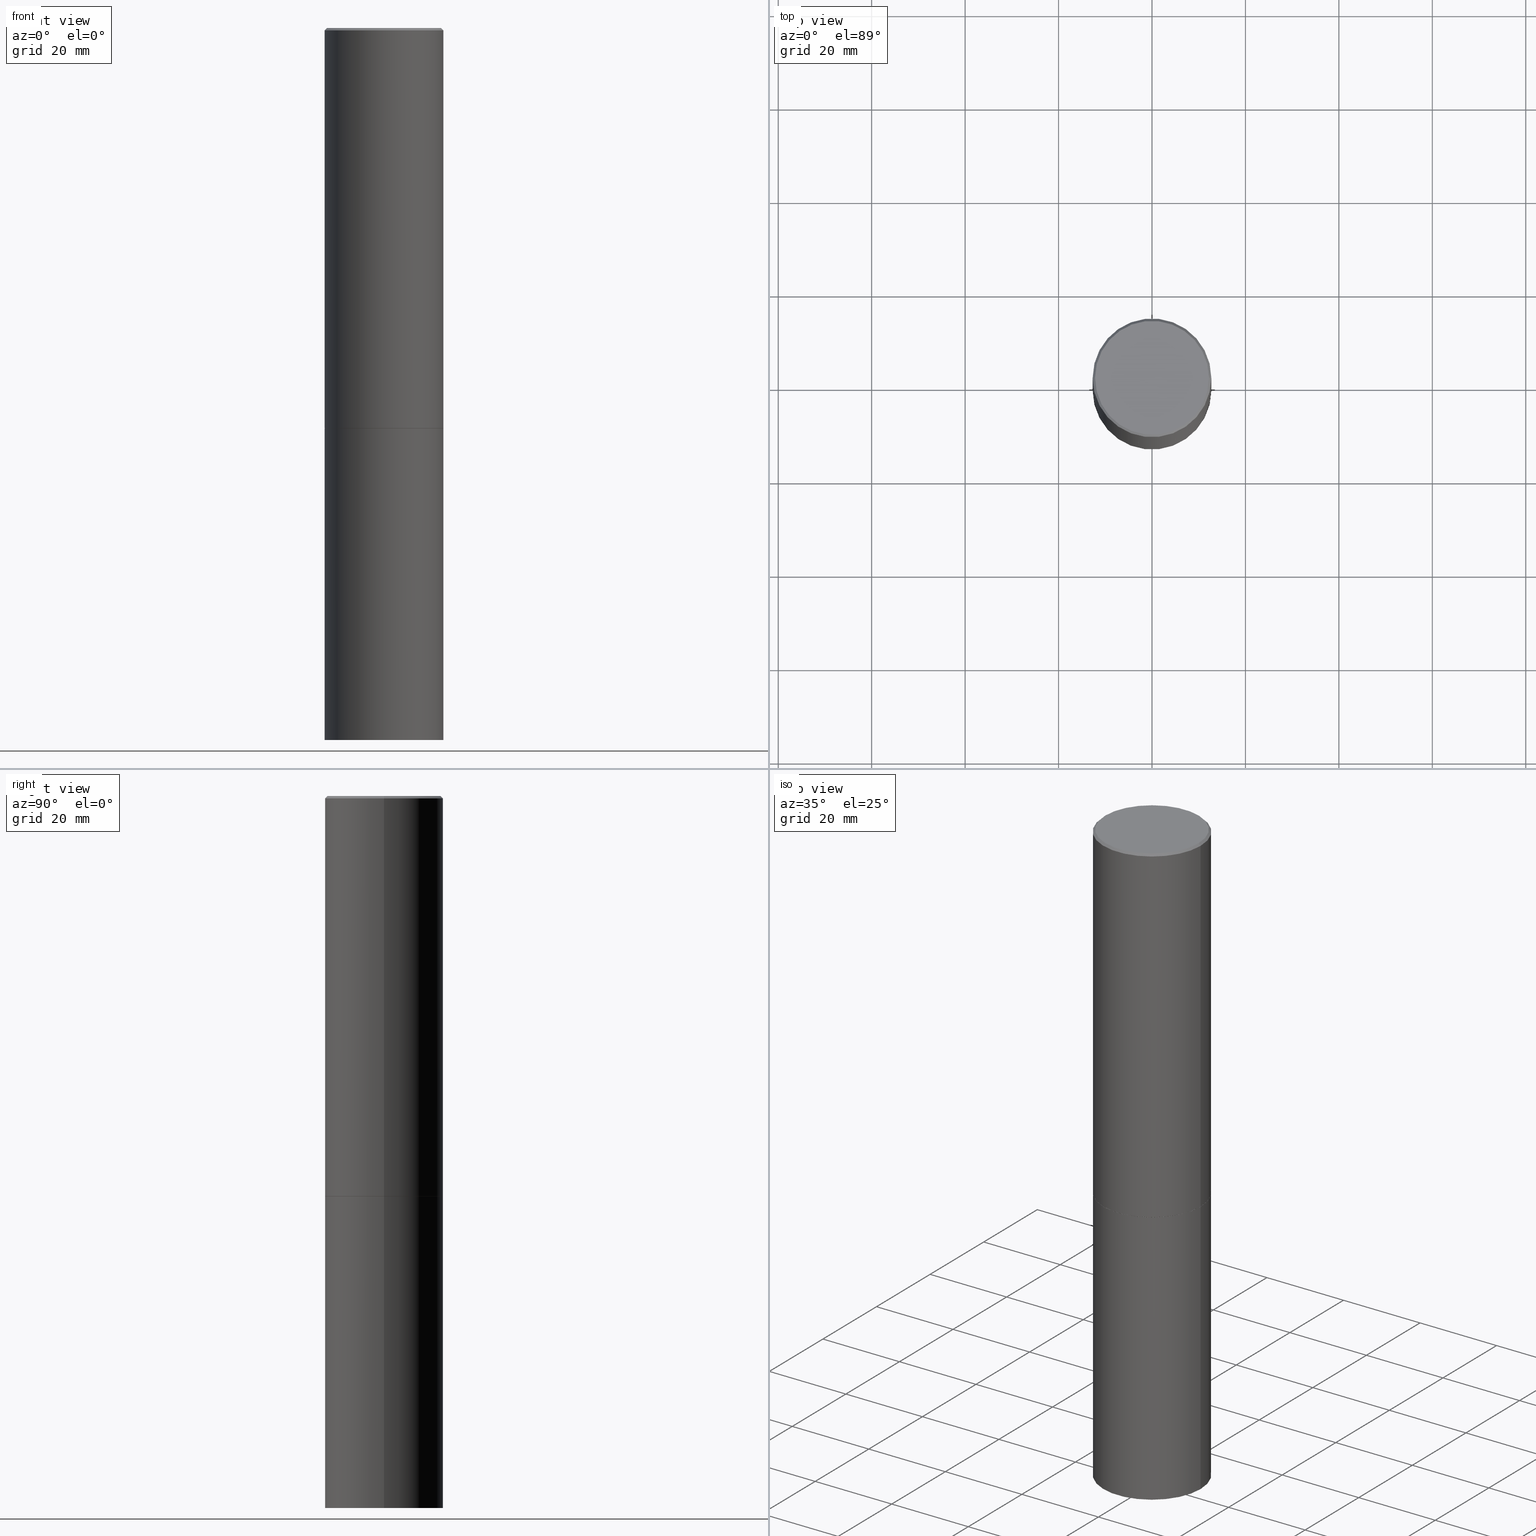
[diagram: canonical four-view strip — front | top / right | iso, engineering-drawing reading convention]
A machine part, canonical four-view strip (front | top / right | iso — engineering-drawing reading convention). The complete STEP part file that produces these views, byte-faithful:
ISO-10303-21;
HEADER;
FILE_DESCRIPTION (( 'STEP AP203' ),
    '1' );
FILE_NAME ('34753.STEP',
    '2024-02-27T17:38:16',
    ( '' ),
    ( '' ),
    'SwSTEP 2.0',
    'SolidWorks 2023',
    '' );
FILE_SCHEMA (( 'CONFIG_CONTROL_DESIGN' ));
ENDSEC;

DATA;
#1 = VECTOR ( 'NONE', #177, 39.37007874015748143 ) ;
#2 = DIRECTION ( 'NONE',  ( -2.438088387897960049E-29, 3.491481338843145188E-15, 1.000000000000000000 ) ) ;
#3 = PRODUCT_DEFINITION_FORMATION_WITH_SPECIFIED_SOURCE ( 'ANY', '', #124, .NOT_KNOWN. ) ;
#4 = CARTESIAN_POINT ( 'NONE',  ( 0.5000000000000000000, -1.527523085743875103E-14, -3.375000000000000444 ) ) ;
#5 = ORIENTED_EDGE ( 'NONE', *, *, #119, .F. ) ;
#6 = AXIS2_PLACEMENT_3D ( 'NONE', #142, #8, #337 ) ;
#7 = CARTESIAN_POINT ( 'NONE',  ( 8.251011752068652653E-29, -1.178025803725677624E-14, -3.374000000000000554 ) ) ;
#8 = DIRECTION ( 'NONE',  ( -2.445468806185136597E-29, 3.491481338843145583E-15, 1.000000000000000000 ) ) ;
#9 = LINE ( 'NONE', #112, #351 ) ;
#10 = CARTESIAN_POINT ( 'NONE',  ( 0.000000000000000000, 0.000000000000000000, 0.000000000000000000 ) ) ;
#11 = AXIS2_PLACEMENT_3D ( 'NONE', #23, #2, #106 ) ;
#12 = CARTESIAN_POINT ( 'NONE',  ( 0.000000000000000000, 0.000000000000000000, 0.000000000000000000 ) ) ;
#13 = ORIENTED_EDGE ( 'NONE', *, *, #268, .T. ) ;
#14 = CARTESIAN_POINT ( 'NONE',  ( 0.5000000000000000000, -3.491481338843133355E-15, 2.438088387897967896E-29 ) ) ;
#15 = CARTESIAN_POINT ( 'NONE',  ( 0.5000000000000000000, -2.444036937190200606E-14, -6.000000000000000888 ) ) ;
#16 = AXIS2_PLACEMENT_3D ( 'NONE', #201, #311, #47 ) ;
#17 = LOCAL_TIME ( 12, 38, 16.00000000000000000, #104 ) ;
#18 = CARTESIAN_POINT ( 'NONE',  ( 0.000000000000000000, 0.000000000000000000, 0.000000000000000000 ) ) ;
#19 = ADVANCED_FACE ( 'NONE', ( #59 ), #176, .T. ) ;
#20 = CIRCLE ( 'NONE', #305, 0.4799999999999995937 ) ;
#21 = PERSON_AND_ORGANIZATION ( #31, #274 ) ;
#22 = CALENDAR_DATE ( 2024, 27, 2 ) ;
#23 = CARTESIAN_POINT ( 'NONE',  ( 8.253457220874836014E-29, -1.178374951859561452E-14, -3.375000000000000000 ) ) ;
#24 = VECTOR ( 'NONE', #117, 39.37007874015748143 ) ;
#25 = ORIENTED_EDGE ( 'NONE', *, *, #307, .T. ) ;
#26 = ORIENTED_EDGE ( 'NONE', *, *, #242, .F. ) ;
#27 = ORIENTED_EDGE ( 'NONE', *, *, #139, .T. ) ;
#28 = DIRECTION ( 'NONE',  ( -2.445468806185136597E-29, 3.491481338843145583E-15, 1.000000000000000000 ) ) ;
#29 = AXIS2_PLACEMENT_3D ( 'NONE', #120, #89, #181 ) ;
#30 = AXIS2_PLACEMENT_3D ( 'NONE', #55, #345, #61 ) ;
#31 = PERSON ( 'UNSPECIFIED', 'UNSPECIFIED', 'UNSPECIFIED', ('UNSPECIFIED'), ('UNSPECIFIED'), ('UNSPECIFIED') ) ;
#32 = FACE_OUTER_BOUND ( 'NONE', #128, .T. ) ;
#33 = VERTEX_POINT ( 'NONE', #174 ) ;
#34 = DIRECTION ( 'NONE',  ( 0.7071067811868130271, -2.468850131085038979E-15, 0.7071067811862817853 ) ) ;
#35 = CARTESIAN_POINT ( 'NONE',  ( -0.4999999999999996114, 3.421651712066267296E-15, -0.02000000000000010797 ) ) ;
#36 = AXIS2_PLACEMENT_3D ( 'NONE', #353, #217, #98 ) ;
#37 = CARTESIAN_POINT ( 'NONE',  ( 3.491481338843279295E-15, 0.4999999999999790168, -6.000000000000002665 ) ) ;
#38 = APPROVAL_DATE_TIME ( #251, #303 ) ;
#39 = CIRCLE ( 'NONE', #335, 0.4999999999999996114 ) ;
#40 = ORIENTED_EDGE ( 'NONE', *, *, #300, .T. ) ;
#41 = CC_DESIGN_PERSON_AND_ORGANIZATION_ASSIGNMENT ( #161, #228, ( #124 ) ) ;
#42 = EDGE_LOOP ( 'NONE', ( #264, #40, #94, #309 ) ) ;
#43 = EDGE_CURVE ( 'NONE', #33, #179, #80, .T. ) ;
#44 = ORIENTED_EDGE ( 'NONE', *, *, #295, .T. ) ;
#45 = CLOSED_SHELL ( 'NONE', ( #62, #338, #237, #226 ) ) ;
#46 = AXIS2_PLACEMENT_3D ( 'NONE', #37, #241, #238 ) ;
#47 = DIRECTION ( 'NONE',  ( 1.000000000000000000, -6.982962677686266711E-15, 0.000000000000000000 ) ) ;
#48 = PERSON_AND_ORGANIZATION_ROLE ( 'classification_officer' ) ;
#49 = DIMENSIONAL_EXPONENTS ( 1.000000000000000000, 0.000000000000000000, 0.000000000000000000, 0.000000000000000000, 0.000000000000000000, 0.000000000000000000, 0.000000000000000000 ) ;
#50 = SECURITY_CLASSIFICATION_LEVEL ( 'unclassified' ) ;
#51 = ORIENTED_EDGE ( 'NONE', *, *, #43, .F. ) ;
#52 = CARTESIAN_POINT ( 'NONE',  ( 4.890937612370299433E-31, -6.982962677686328587E-17, -0.02000000000000010797 ) ) ;
#53 = AXIS2_PLACEMENT_3D ( 'NONE', #230, #281, #152 ) ;
#54 = ORIENTED_EDGE ( 'NONE', *, *, #153, .T. ) ;
#55 = CARTESIAN_POINT ( 'NONE',  ( 3.351822085289404787E-15, 0.4799999999999995937, -1.669508273909557867E-15 ) ) ;
#56 = MANIFOLD_SOLID_BREP ( 'Body-Move/Copy2[1]', #45 ) ;
#57 = CARTESIAN_POINT ( 'NONE',  ( -0.5000000000000000000, 3.552713678800500929E-15, -2.459467545127452891E-29 ) ) ;
#58 = VECTOR ( 'NONE', #34, 39.37007874015748854 ) ;
#59 = FACE_OUTER_BOUND ( 'NONE', #42, .T. ) ;
#60 = CARTESIAN_POINT ( 'NONE',  ( 0.4999999999999997780, -3.491481338843131778E-15, 2.438088387897966775E-29 ) ) ;
#61 = DIRECTION ( 'NONE',  ( -1.000000000000000000, 6.982962677686265922E-15, -4.876176775795935793E-29 ) ) ;
#62 = ADVANCED_FACE ( 'NONE', ( #186 ), #246, .T. ) ;
#63 = CARTESIAN_POINT ( 'NONE',  ( 8.251011752068652653E-29, -1.178025803725677624E-14, -3.374000000000000554 ) ) ;
#64 = APPROVAL_STATUS ( 'not_yet_approved' ) ;
#65 = VERTEX_POINT ( 'NONE', #15 ) ;
#66 = CARTESIAN_POINT ( 'NONE',  ( -0.4989999999999999991, -8.238141267152715385E-15, -3.375000000000000000 ) ) ;
#67 = CIRCLE ( 'NONE', #16, 0.4999999999999996114 ) ;
#68 = VECTOR ( 'NONE', #296, 39.37007874015748854 ) ;
#69 = CARTESIAN_POINT ( 'NONE',  ( 1.467281283711081958E-28, -2.094888803305887271E-14, -6.000000000000000888 ) ) ;
#70 = MANIFOLD_SOLID_BREP ( 'Body-Move/Copy2[2]', #160 ) ;
#71 = CALENDAR_DATE ( 2024, 27, 2 ) ;
#72 = DIRECTION ( 'NONE',  ( 1.000000000000000000, -6.982962677686265133E-15, 0.000000000000000000 ) ) ;
#73 = CONICAL_SURFACE ( 'NONE', #330, 0.4999999999999996114, 0.7853981633974450594 ) ;
#74 = EDGE_LOOP ( 'NONE', ( #232, #157 ) ) ;
#75 = APPROVAL_PERSON_ORGANIZATION ( #183, #209, #122 ) ;
#76 = VERTEX_POINT ( 'NONE', #121 ) ;
#77 = EDGE_CURVE ( 'NONE', #108, #65, #155, .T. ) ;
#78 = ORIENTED_EDGE ( 'NONE', *, *, #125, .T. ) ;
#79 = ORIENTED_EDGE ( 'NONE', *, *, #290, .T. ) ;
#80 = CIRCLE ( 'NONE', #187, 0.5000000000000000000 ) ;
#81 = EDGE_CURVE ( 'NONE', #65, #108, #205, .T. ) ;
#82 = CARTESIAN_POINT ( 'NONE',  ( -0.4999999999999996114, 3.421651712066267296E-15, -0.02000000000000010797 ) ) ;
#83 = CARTESIAN_POINT ( 'NONE',  ( 8.253457220874837135E-29, -1.178374951859561767E-14, -3.375000000000000444 ) ) ;
#84 = PLANE ( 'NONE',  #30 ) ;
#85 = CARTESIAN_POINT ( 'NONE',  ( -3.131554243005659264E-46, 4.471029511141341874E-32, 1.280553747030123384E-17 ) ) ;
#86 = CARTESIAN_POINT ( 'NONE',  ( -0.5000000000000000000, -2.372330153216316080E-15, -3.374000000000000554 ) ) ;
#87 = PERSON_AND_ORGANIZATION_ROLE ( 'creator' ) ;
#88 = EDGE_LOOP ( 'NONE', ( #171, #227, #44, #321 ) ) ;
#89 = DIRECTION ( 'NONE',  ( -2.445468806185136597E-29, 3.491481338843145583E-15, 1.000000000000000000 ) ) ;
#90 = ORIENTED_EDGE ( 'NONE', *, *, #134, .T. ) ;
#91 = LINE ( 'NONE', #288, #58 ) ;
#92 = CALENDAR_DATE ( 2024, 27, 2 ) ;
#93 = DIRECTION ( 'NONE',  ( -2.445468806185136597E-29, 3.491481338843145583E-15, 1.000000000000000000 ) ) ;
#94 = ORIENTED_EDGE ( 'NONE', *, *, #110, .T. ) ;
#95 = DESIGN_CONTEXT ( 'detailed design', #366, 'design' ) ;
#96 = FACE_OUTER_BOUND ( 'NONE', #88, .T. ) ;
#97 = CARTESIAN_POINT ( 'NONE',  ( -0.5000000000000000000, -1.281360509702674426E-14, -6.000000000000000888 ) ) ;
#98 = DIRECTION ( 'NONE',  ( -1.000000000000000000, 6.982962677686266711E-15, 0.000000000000000000 ) ) ;
#99 = CARTESIAN_POINT ( 'NONE',  ( 8.253457220874837135E-29, -1.178374951859561767E-14, -3.375000000000000444 ) ) ;
#100 = CALENDAR_DATE ( 2024, 27, 2 ) ;
#101 = ORIENTED_EDGE ( 'NONE', *, *, #169, .F. ) ;
#102 = CIRCLE ( 'NONE', #294, 0.5000000000000000000 ) ;
#103 = CARTESIAN_POINT ( 'NONE',  ( 0.000000000000000000, 0.000000000000000000, 0.000000000000000000 ) ) ;
#104 = COORDINATED_UNIVERSAL_TIME_OFFSET ( 5, 0, .BEHIND. ) ;
#105 = ORIENTED_EDGE ( 'NONE', *, *, #185, .F. ) ;
#106 = DIRECTION ( 'NONE',  ( 1.000000000000000000, -6.982962677686265922E-15, 4.876176775795935793E-29 ) ) ;
#107 = PERSON_AND_ORGANIZATION ( #31, #274 ) ;
#108 = VERTEX_POINT ( 'NONE', #97 ) ;
#109 = PRODUCT_RELATED_PRODUCT_CATEGORY ( 'detail', '', ( #124 ) ) ;
#110 = EDGE_CURVE ( 'NONE', #151, #76, #219, .T. ) ;
#111 = CC_DESIGN_APPROVAL ( #199, ( #188 ) ) ;
#112 = CARTESIAN_POINT ( 'NONE',  ( -0.4999999999999997780, 3.552713678800499352E-15, -2.459467545127452050E-29 ) ) ;
#113 = AXIS2_PLACEMENT_3D ( 'NONE', #159, #93, #72 ) ;
#114 = FACE_OUTER_BOUND ( 'NONE', #214, .T. ) ;
#115 = CC_DESIGN_SECURITY_CLASSIFICATION ( #188, ( #3 ) ) ;
#116 = ORIENTED_EDGE ( 'NONE', *, *, #191, .T. ) ;
#117 = DIRECTION ( 'NONE',  ( -2.445468806185136877E-29, 3.491481338843145188E-15, 1.000000000000000000 ) ) ;
#118 = DIRECTION ( 'NONE',  ( -2.445468806185136597E-29, 3.491481338843145583E-15, 1.000000000000000000 ) ) ;
#119 = EDGE_CURVE ( 'NONE', #173, #151, #91, .T. ) ;
#120 = CARTESIAN_POINT ( 'NONE',  ( 8.253457220874836014E-29, -1.178374951859561452E-14, -3.375000000000000000 ) ) ;
#121 = CARTESIAN_POINT ( 'NONE',  ( 0.4999999999999996114, -3.500078625662626318E-15, -0.02000000000000010797 ) ) ;
#122 = APPROVAL_ROLE ( '' ) ;
#123 = DIRECTION ( 'NONE',  ( 1.000000000000000000, 0.000000000000000000, 0.000000000000000000 ) ) ;
#124 = PRODUCT ( '34753', '34753', '', ( #260 ) ) ;
#125 = EDGE_CURVE ( 'NONE', #364, #329, #9, .T. ) ;
#126 = APPROVAL_ROLE ( '' ) ;
#127 = AXIS2_PLACEMENT_3D ( 'NONE', #257, #349, #210 ) ;
#128 = EDGE_LOOP ( 'NONE', ( #27, #78, #101, #184 ) ) ;
#129 =( CONVERSION_BASED_UNIT ( 'INCH', #280 ) LENGTH_UNIT ( ) NAMED_UNIT ( #49 ) );
#130 = FACE_OUTER_BOUND ( 'NONE', #195, .T. ) ;
#131 = DATE_AND_TIME ( #22, #17 ) ;
#132 = PERSON_AND_ORGANIZATION_ROLE ( 'design_supplier' ) ;
#133 = ORIENTED_EDGE ( 'NONE', *, *, #77, .T. ) ;
#134 = EDGE_CURVE ( 'NONE', #165, #221, #20, .T. ) ;
#135 = PERSON_AND_ORGANIZATION_ROLE ( 'creator' ) ;
#136 = CC_DESIGN_DATE_AND_TIME_ASSIGNMENT ( #131, #200, ( #188 ) ) ;
#137 = APPROVAL_PERSON_ORGANIZATION ( #363, #199, #126 ) ;
#138 = ORIENTED_EDGE ( 'NONE', *, *, #355, .F. ) ;
#139 = EDGE_CURVE ( 'NONE', #151, #364, #102, .T. ) ;
#140 = ORIENTED_EDGE ( 'NONE', *, *, #242, .T. ) ;
#141 = DIRECTION ( 'NONE',  ( 1.000000000000000000, -6.982962677686265133E-15, 0.000000000000000000 ) ) ;
#142 = CARTESIAN_POINT ( 'NONE',  ( 0.000000000000000000, 0.000000000000000000, 0.000000000000000000 ) ) ;
#143 = CARTESIAN_POINT ( 'NONE',  ( 1.467281283711081958E-28, -2.094888803305887271E-14, -6.000000000000000888 ) ) ;
#144 = LINE ( 'NONE', #35, #269 ) ;
#145 = CYLINDRICAL_SURFACE ( 'NONE', #287, 0.5000000000000000000 ) ;
#146 = CC_DESIGN_PERSON_AND_ORGANIZATION_ASSIGNMENT ( #308, #48, ( #188 ) ) ;
#147 = CARTESIAN_POINT ( 'NONE',  ( 0.5000000000000000000, -1.527173937609990960E-14, -3.374000000000000554 ) ) ;
#148 = CIRCLE ( 'NONE', #216, 0.5000000000000000000 ) ;
#149 = LOCAL_TIME ( 12, 38, 16.00000000000000000, #319 ) ;
#150 = FACE_OUTER_BOUND ( 'NONE', #361, .T. ) ;
#151 = VERTEX_POINT ( 'NONE', #147 ) ;
#152 = DIRECTION ( 'NONE',  ( 1.000000000000000000, -6.982962677686266711E-15, 4.876036955247133327E-29 ) ) ;
#153 = EDGE_CURVE ( 'NONE', #65, #179, #270, .T. ) ;
#154 = DATE_TIME_ROLE ( 'creation_date' ) ;
#155 = CIRCLE ( 'NONE', #215, 0.5000000000000000000 ) ;
#156 = COORDINATED_UNIVERSAL_TIME_OFFSET ( 5, 0, .BEHIND. ) ;
#157 = ORIENTED_EDGE ( 'NONE', *, *, #43, .T. ) ;
#158 = DIRECTION ( 'NONE',  ( 1.000000000000000000, -6.982962677686266711E-15, 0.000000000000000000 ) ) ;
#159 = CARTESIAN_POINT ( 'NONE',  ( 8.253457220874836014E-29, -1.178374951859561452E-14, -3.375000000000000000 ) ) ;
#160 = CLOSED_SHELL ( 'NONE', ( #256, #297, #252, #250, #19, #365, #277, #342 ) ) ;
#161 = PERSON_AND_ORGANIZATION ( #31, #274 ) ;
#162 = LINE ( 'NONE', #172, #168 ) ;
#163 = APPROVAL_DATE_TIME ( #328, #209 ) ;
#164 = CC_DESIGN_PERSON_AND_ORGANIZATION_ASSIGNMENT ( #273, #87, ( #272 ) ) ;
#165 = VERTEX_POINT ( 'NONE', #244 ) ;
#166 = ORIENTED_EDGE ( 'NONE', *, *, #300, .F. ) ;
#167 = DIRECTION ( 'NONE',  ( -2.445468806185136597E-29, 3.491481338843145583E-15, 1.000000000000000000 ) ) ;
#168 = VECTOR ( 'NONE', #284, 39.37007874015748143 ) ;
#169 = EDGE_CURVE ( 'NONE', #76, #329, #39, .T. ) ;
#170 = CC_DESIGN_APPROVAL ( #209, ( #3 ) ) ;
#171 = ORIENTED_EDGE ( 'NONE', *, *, #268, .F. ) ;
#172 = CARTESIAN_POINT ( 'NONE',  ( 0.4999999999999996114, -3.500078625662626318E-15, -0.02000000000000010797 ) ) ;
#173 = VERTEX_POINT ( 'NONE', #276 ) ;
#174 = CARTESIAN_POINT ( 'NONE',  ( -0.5000000000000000000, -1.281360509702674426E-14, -3.375000000000000444 ) ) ;
#175 = DIRECTION ( 'NONE',  ( -2.445468806185136877E-29, 3.491481338843145188E-15, 1.000000000000000000 ) ) ;
#176 = CYLINDRICAL_SURFACE ( 'NONE', #6, 0.4999999999999997780 ) ;
#177 = DIRECTION ( 'NONE',  ( -2.445468806185136877E-29, 3.491481338843145188E-15, 1.000000000000000000 ) ) ;
#178 = LINE ( 'NONE', #57, #331 ) ;
#179 = VERTEX_POINT ( 'NONE', #4 ) ;
#180 = CC_DESIGN_DATE_AND_TIME_ASSIGNMENT ( #213, #154, ( #272 ) ) ;
#181 = DIRECTION ( 'NONE',  ( 1.000000000000000000, -6.982962677686265133E-15, 0.000000000000000000 ) ) ;
#182 = DIRECTION ( 'NONE',  ( -2.445468806185136597E-29, 3.491481338843145583E-15, 1.000000000000000000 ) ) ;
#183 = PERSON_AND_ORGANIZATION ( #31, #274 ) ;
#184 = ORIENTED_EDGE ( 'NONE', *, *, #110, .F. ) ;
#185 = EDGE_CURVE ( 'NONE', #179, #33, #198, .T. ) ;
#186 = FACE_OUTER_BOUND ( 'NONE', #203, .T. ) ;
#187 = AXIS2_PLACEMENT_3D ( 'NONE', #83, #347, #299 ) ;
#188 = SECURITY_CLASSIFICATION ( '', '', #50 ) ;
#189 = DIRECTION ( 'NONE',  ( -2.445468806185136597E-29, 3.491481338843145583E-15, 1.000000000000000000 ) ) ;
#190 = CARTESIAN_POINT ( 'NONE',  ( 4.890937612370299433E-31, -6.982962677686328587E-17, -0.02000000000000010797 ) ) ;
#191 = EDGE_CURVE ( 'NONE', #253, #173, #263, .T. ) ;
#192 = CONICAL_SURFACE ( 'NONE', #36, 0.4999999999999996114, 0.7853981633974450594 ) ;
#193 = ORIENTED_EDGE ( 'NONE', *, *, #355, .T. ) ;
#194 = APPLICATION_PROTOCOL_DEFINITION ( 'international standard', 'config_control_design', 1994, #267 ) ;
#195 = EDGE_LOOP ( 'NONE', ( #140, #25, #357, #5 ) ) ;
#196 =( LENGTH_UNIT ( ) NAMED_UNIT ( * ) SI_UNIT ( $, .METRE. ) );
#197 = DIRECTION ( 'NONE',  ( -1.000000000000000000, 6.982962677686266711E-15, 0.000000000000000000 ) ) ;
#198 = CIRCLE ( 'NONE', #340, 0.5000000000000000000 ) ;
#199 = APPROVAL ( #225, 'UNSPECIFIED' ) ;
#200 = DATE_TIME_ROLE ( 'classification_date' ) ;
#201 = CARTESIAN_POINT ( 'NONE',  ( 4.890937612370299433E-31, -6.982962677686328587E-17, -0.02000000000000010797 ) ) ;
#202 = EDGE_LOOP ( 'NONE', ( #90, #79 ) ) ;
#203 = EDGE_LOOP ( 'NONE', ( #282, #193, #105, #313 ) ) ;
#204 = LINE ( 'NONE', #66, #68 ) ;
#205 = CIRCLE ( 'NONE', #324, 0.5000000000000000000 ) ;
#206 = DIRECTION ( 'NONE',  ( -2.445468806185136597E-29, 3.491481338843145583E-15, 1.000000000000000000 ) ) ;
#207 = AXIS2_PLACEMENT_3D ( 'NONE', #318, #28, #141 ) ;
#208 = DIRECTION ( 'NONE',  ( -2.445468806185136597E-29, 3.491481338843145583E-15, 1.000000000000000000 ) ) ;
#209 = APPROVAL ( #275, 'UNSPECIFIED' ) ;
#210 = DIRECTION ( 'NONE',  ( 1.000000000000000000, -6.982962677686265133E-15, 0.000000000000000000 ) ) ;
#211 = DIRECTION ( 'NONE',  ( -2.445468806185136597E-29, 3.491481338843145583E-15, 1.000000000000000000 ) ) ;
#212 = FACE_OUTER_BOUND ( 'NONE', #229, .T. ) ;
#213 = DATE_AND_TIME ( #71, #302 ) ;
#214 = EDGE_LOOP ( 'NONE', ( #233, #334 ) ) ;
#215 = AXIS2_PLACEMENT_3D ( 'NONE', #69, #189, #248 ) ;
#216 = AXIS2_PLACEMENT_3D ( 'NONE', #7, #208, #348 ) ;
#217 = DIRECTION ( 'NONE',  ( 2.445468806185136597E-29, -3.491481338843145583E-15, -1.000000000000000000 ) ) ;
#218 = CC_DESIGN_PERSON_AND_ORGANIZATION_ASSIGNMENT ( #224, #135, ( #3 ) ) ;
#219 = LINE ( 'NONE', #60, #1 ) ;
#220 = DIRECTION ( 'NONE',  ( 0.000000000000000000, 0.000000000000000000, 1.000000000000000000 ) ) ;
#221 = VERTEX_POINT ( 'NONE', #289 ) ;
#222 = DIRECTION ( 'NONE',  ( -2.445468806185136597E-29, 3.491481338843145583E-15, 1.000000000000000000 ) ) ;
#223 = CIRCLE ( 'NONE', #53, 0.4799999999999995937 ) ;
#224 = PERSON_AND_ORGANIZATION ( #31, #274 ) ;
#225 = APPROVAL_STATUS ( 'not_yet_approved' ) ;
#226 = ADVANCED_FACE ( 'NONE', ( #150 ), #145, .T. ) ;
#227 = ORIENTED_EDGE ( 'NONE', *, *, #134, .F. ) ;
#228 = PERSON_AND_ORGANIZATION_ROLE ( 'design_owner' ) ;
#229 = EDGE_LOOP ( 'NONE', ( #254, #116, #286, #166 ) ) ;
#230 = CARTESIAN_POINT ( 'NONE',  ( -3.131554243005659264E-46, 4.471029511141341874E-32, 1.280553747030123384E-17 ) ) ;
#231 = DATE_AND_TIME ( #356, #306 ) ;
#232 = ORIENTED_EDGE ( 'NONE', *, *, #185, .T. ) ;
#233 = ORIENTED_EDGE ( 'NONE', *, *, #81, .F. ) ;
#234 = CONICAL_SURFACE ( 'NONE', #127, 0.4989999999999999991, 0.7853981633978239785 ) ;
#235 = CC_DESIGN_APPROVAL ( #303, ( #272 ) ) ;
#236 = DIRECTION ( 'NONE',  ( 1.000000000000000000, -6.982962677686266711E-15, 4.876176775795935793E-29 ) ) ;
#237 = ADVANCED_FACE ( 'NONE', ( #247 ), #350, .F. ) ;
#238 = DIRECTION ( 'NONE',  ( -1.000000000000000000, 6.982962677686265922E-15, -4.876176775795935793E-29 ) ) ;
#239 = DIRECTION ( 'NONE',  ( -2.445468806185136877E-29, 3.491481338843145188E-15, 1.000000000000000000 ) ) ;
#240 = LOCAL_TIME ( 12, 38, 16.00000000000000000, #156 ) ;
#241 = DIRECTION ( 'NONE',  ( 2.438088387897960049E-29, -3.491481338843145188E-15, -1.000000000000000000 ) ) ;
#242 = EDGE_CURVE ( 'NONE', #173, #253, #249, .T. ) ;
#243 = ORIENTED_EDGE ( 'NONE', *, *, #295, .F. ) ;
#244 = CARTESIAN_POINT ( 'NONE',  ( -0.4799999999999995937, 3.386736898677836436E-15, 1.280553747027767124E-17 ) ) ;
#245 = DIRECTION ( 'NONE',  ( -1.000000000000000000, 6.982962677686265922E-15, -4.876176775795935793E-29 ) ) ;
#246 = CYLINDRICAL_SURFACE ( 'NONE', #315, 0.5000000000000000000 ) ;
#247 = FACE_OUTER_BOUND ( 'NONE', #74, .T. ) ;
#248 = DIRECTION ( 'NONE',  ( 1.000000000000000000, -6.982962677686262766E-15, 0.000000000000000000 ) ) ;
#249 = CIRCLE ( 'NONE', #113, 0.4989999999999999991 ) ;
#250 = ADVANCED_FACE ( 'NONE', ( #96 ), #192, .T. ) ;
#251 = DATE_AND_TIME ( #92, #240 ) ;
#252 = ADVANCED_FACE ( 'NONE', ( #325 ), #73, .T. ) ;
#253 = VERTEX_POINT ( 'NONE', #298 ) ;
#254 = ORIENTED_EDGE ( 'NONE', *, *, #307, .F. ) ;
#255 = ADVANCED_BREP_SHAPE_REPRESENTATION ( '34753', ( #56, #70, #279 ), #341 ) ;
#256 = ADVANCED_FACE ( 'NONE', ( #130 ), #234, .T. ) ;
#257 = CARTESIAN_POINT ( 'NONE',  ( 8.253457220874836014E-29, -1.178374951859561452E-14, -3.375000000000000000 ) ) ;
#258 = COORDINATED_UNIVERSAL_TIME_OFFSET ( 5, 0, .BEHIND. ) ;
#259 = APPROVAL_DATE_TIME ( #231, #199 ) ;
#260 = MECHANICAL_CONTEXT ( 'NONE', #267, 'mechanical' ) ;
#261 = EDGE_CURVE ( 'NONE', #329, #76, #67, .T. ) ;
#262 = FACE_OUTER_BOUND ( 'NONE', #312, .T. ) ;
#263 = CIRCLE ( 'NONE', #29, 0.4989999999999999991 ) ;
#264 = ORIENTED_EDGE ( 'NONE', *, *, #125, .F. ) ;
#265 = CONICAL_SURFACE ( 'NONE', #207, 0.4989999999999999991, 0.7853981633978239785 ) ;
#266 = PLANE ( 'NONE',  #46 ) ;
#267 = APPLICATION_CONTEXT ( 'configuration controlled 3d designs of mechanical parts and assemblies' ) ;
#268 = EDGE_CURVE ( 'NONE', #221, #76, #162, .T. ) ;
#269 = VECTOR ( 'NONE', #323, 39.37007874015748143 ) ;
#270 = LINE ( 'NONE', #14, #24 ) ;
#271 = CYLINDRICAL_SURFACE ( 'NONE', #358, 0.4999999999999997780 ) ;
#272 = PRODUCT_DEFINITION ( 'UNKNOWN', '', #3, #95 ) ;
#273 = PERSON_AND_ORGANIZATION ( #31, #274 ) ;
#274 = ORGANIZATION ( 'UNSPECIFIED', 'UNSPECIFIED', '' ) ;
#275 = APPROVAL_STATUS ( 'not_yet_approved' ) ;
#276 = CARTESIAN_POINT ( 'NONE',  ( 0.4989999999999999991, -1.526824789476106186E-14, -3.375000000000000000 ) ) ;
#277 = ADVANCED_FACE ( 'NONE', ( #262 ), #336, .F. ) ;
#278 = DIRECTION ( 'NONE',  ( -2.445468806185136597E-29, 3.491481338843145583E-15, 1.000000000000000000 ) ) ;
#279 = AXIS2_PLACEMENT_3D ( 'NONE', #103, #220, #123 ) ;
#280 = LENGTH_MEASURE_WITH_UNIT ( LENGTH_MEASURE( 0.02539999999999999897 ), #196 );
#281 = DIRECTION ( 'NONE',  ( -2.445468806185136597E-29, 3.491481338843145583E-15, 1.000000000000000000 ) ) ;
#282 = ORIENTED_EDGE ( 'NONE', *, *, #81, .T. ) ;
#283 = CC_DESIGN_PERSON_AND_ORGANIZATION_ASSIGNMENT ( #21, #132, ( #3 ) ) ;
#284 = DIRECTION ( 'NONE',  ( 0.7071067811865452413, -7.319954787623248157E-15, -0.7071067811865497932 ) ) ;
#285 = EDGE_LOOP ( 'NONE', ( #343, #13, #332, #243 ) ) ;
#286 = ORIENTED_EDGE ( 'NONE', *, *, #119, .T. ) ;
#287 = AXIS2_PLACEMENT_3D ( 'NONE', #12, #278, #346 ) ;
#288 = CARTESIAN_POINT ( 'NONE',  ( 0.4989999999999999991, -1.526824789476106186E-14, -3.375000000000000000 ) ) ;
#289 = CARTESIAN_POINT ( 'NONE',  ( 0.4799999999999995937, -3.396558832296479338E-15, 1.280553747032483033E-17 ) ) ;
#290 = EDGE_CURVE ( 'NONE', #221, #165, #223, .T. ) ;
#291 = DIRECTION ( 'NONE',  ( 1.000000000000000000, -6.982962677686266711E-15, 0.000000000000000000 ) ) ;
#292 = DIRECTION ( 'NONE',  ( 2.438088387897960049E-29, -3.491481338843145188E-15, -1.000000000000000000 ) ) ;
#293 = ORIENTED_EDGE ( 'NONE', *, *, #191, .F. ) ;
#294 = AXIS2_PLACEMENT_3D ( 'NONE', #63, #182, #291 ) ;
#295 = EDGE_CURVE ( 'NONE', #165, #329, #144, .T. ) ;
#296 = DIRECTION ( 'NONE',  ( -0.7071067811868130271, 7.493145998871311837E-15, 0.7071067811862817853 ) ) ;
#297 = ADVANCED_FACE ( 'NONE', ( #32 ), #271, .T. ) ;
#298 = CARTESIAN_POINT ( 'NONE',  ( -0.4989999999999999991, -8.232842812804494560E-15, -3.375000000000000000 ) ) ;
#299 = DIRECTION ( 'NONE',  ( 1.000000000000000000, -6.982962677686266711E-15, 0.000000000000000000 ) ) ;
#300 = EDGE_CURVE ( 'NONE', #364, #151, #148, .T. ) ;
#301 = AXIS2_PLACEMENT_3D ( 'NONE', #320, #292, #245 ) ;
#302 = LOCAL_TIME ( 12, 38, 16.00000000000000000, #326 ) ;
#303 = APPROVAL ( #64, 'UNSPECIFIED' ) ;
#304 =( NAMED_UNIT ( * ) SI_UNIT ( $, .STERADIAN. ) SOLID_ANGLE_UNIT ( ) );
#305 = AXIS2_PLACEMENT_3D ( 'NONE', #85, #211, #317 ) ;
#306 = LOCAL_TIME ( 12, 38, 16.00000000000000000, #258 ) ;
#307 = EDGE_CURVE ( 'NONE', #253, #364, #204, .T. ) ;
#308 = PERSON_AND_ORGANIZATION ( #31, #274 ) ;
#309 = ORIENTED_EDGE ( 'NONE', *, *, #261, .F. ) ;
#310 = APPROVAL_PERSON_ORGANIZATION ( #107, #303, #354 ) ;
#311 = DIRECTION ( 'NONE',  ( -2.445468806185136597E-29, 3.491481338843145583E-15, 1.000000000000000000 ) ) ;
#312 = EDGE_LOOP ( 'NONE', ( #26, #293 ) ) ;
#313 = ORIENTED_EDGE ( 'NONE', *, *, #153, .F. ) ;
#314 = FACE_OUTER_BOUND ( 'NONE', #202, .T. ) ;
#315 = AXIS2_PLACEMENT_3D ( 'NONE', #18, #206, #316 ) ;
#316 = DIRECTION ( 'NONE',  ( 1.000000000000000000, -6.982962677686266711E-15, 4.876176775795935793E-29 ) ) ;
#317 = DIRECTION ( 'NONE',  ( 1.000000000000000000, -6.982962677686266711E-15, 4.876036955247133327E-29 ) ) ;
#318 = CARTESIAN_POINT ( 'NONE',  ( 8.253457220874836014E-29, -1.178374951859561452E-14, -3.375000000000000000 ) ) ;
#319 = COORDINATED_UNIVERSAL_TIME_OFFSET ( 5, 0, .BEHIND. ) ;
#320 = CARTESIAN_POINT ( 'NONE',  ( 3.491481338843215397E-15, 0.4999999999999881761, -3.375000000000002220 ) ) ;
#321 = ORIENTED_EDGE ( 'NONE', *, *, #261, .T. ) ;
#322 = DIRECTION ( 'NONE',  ( 1.000000000000000000, -6.982962677686262766E-15, 0.000000000000000000 ) ) ;
#323 = DIRECTION ( 'NONE',  ( -0.7071067811865452413, 2.468850131082233000E-15, -0.7071067811865497932 ) ) ;
#324 = AXIS2_PLACEMENT_3D ( 'NONE', #143, #352, #322 ) ;
#325 = FACE_OUTER_BOUND ( 'NONE', #285, .T. ) ;
#326 = COORDINATED_UNIVERSAL_TIME_OFFSET ( 5, 0, .BEHIND. ) ;
#327 = DIRECTION ( 'NONE',  ( 1.000000000000000000, -6.982962677686266711E-15, 0.000000000000000000 ) ) ;
#328 = DATE_AND_TIME ( #100, #149 ) ;
#329 = VERTEX_POINT ( 'NONE', #82 ) ;
#330 = AXIS2_PLACEMENT_3D ( 'NONE', #190, #362, #197 ) ;
#331 = VECTOR ( 'NONE', #175, 39.37007874015748143 ) ;
#332 = ORIENTED_EDGE ( 'NONE', *, *, #169, .T. ) ;
#333 = SHAPE_DEFINITION_REPRESENTATION ( #359, #255 ) ;
#334 = ORIENTED_EDGE ( 'NONE', *, *, #77, .F. ) ;
#335 = AXIS2_PLACEMENT_3D ( 'NONE', #52, #167, #158 ) ;
#336 = PLANE ( 'NONE',  #11 ) ;
#337 = DIRECTION ( 'NONE',  ( 1.000000000000000000, -6.982962677686266711E-15, 4.876176775795935793E-29 ) ) ;
#338 = ADVANCED_FACE ( 'NONE', ( #114 ), #266, .T. ) ;
#339 =( NAMED_UNIT ( * ) PLANE_ANGLE_UNIT ( ) SI_UNIT ( $, .RADIAN. ) );
#340 = AXIS2_PLACEMENT_3D ( 'NONE', #99, #222, #327 ) ;
#341 =( GEOMETRIC_REPRESENTATION_CONTEXT ( 3 ) GLOBAL_UNCERTAINTY_ASSIGNED_CONTEXT ( ( #344 ) ) GLOBAL_UNIT_ASSIGNED_CONTEXT ( ( #129, #339, #304 ) ) REPRESENTATION_CONTEXT ( 'NONE', 'WORKASPACE' ) );
#342 = ADVANCED_FACE ( 'NONE', ( #314 ), #84, .F. ) ;
#343 = ORIENTED_EDGE ( 'NONE', *, *, #290, .F. ) ;
#344 = UNCERTAINTY_MEASURE_WITH_UNIT (LENGTH_MEASURE( 1.000000000000000082E-05 ), #129, 'distance_accuracy_value', 'NONE');
#345 = DIRECTION ( 'NONE',  ( 2.438088387897960049E-29, -3.491481338843145188E-15, -1.000000000000000000 ) ) ;
#346 = DIRECTION ( 'NONE',  ( 1.000000000000000000, -6.982962677686266711E-15, 4.876176775795935793E-29 ) ) ;
#347 = DIRECTION ( 'NONE',  ( -2.445468806185136597E-29, 3.491481338843145583E-15, 1.000000000000000000 ) ) ;
#348 = DIRECTION ( 'NONE',  ( 1.000000000000000000, -6.982962677686266711E-15, 0.000000000000000000 ) ) ;
#349 = DIRECTION ( 'NONE',  ( -2.445468806185136597E-29, 3.491481338843145583E-15, 1.000000000000000000 ) ) ;
#350 = PLANE ( 'NONE',  #301 ) ;
#351 = VECTOR ( 'NONE', #239, 39.37007874015748143 ) ;
#352 = DIRECTION ( 'NONE',  ( -2.445468806185136597E-29, 3.491481338843145583E-15, 1.000000000000000000 ) ) ;
#353 = CARTESIAN_POINT ( 'NONE',  ( 4.890937612370299433E-31, -6.982962677686328587E-17, -0.02000000000000010797 ) ) ;
#354 = APPROVAL_ROLE ( '' ) ;
#355 = EDGE_CURVE ( 'NONE', #108, #33, #178, .T. ) ;
#356 = CALENDAR_DATE ( 2024, 27, 2 ) ;
#357 = ORIENTED_EDGE ( 'NONE', *, *, #139, .F. ) ;
#358 = AXIS2_PLACEMENT_3D ( 'NONE', #10, #118, #236 ) ;
#359 = PRODUCT_DEFINITION_SHAPE ( 'NONE', 'NONE',  #272 ) ;
#360 = APPLICATION_PROTOCOL_DEFINITION ( 'international standard', 'config_control_design', 1994, #366 ) ;
#361 = EDGE_LOOP ( 'NONE', ( #138, #133, #54, #51 ) ) ;
#362 = DIRECTION ( 'NONE',  ( 2.445468806185136597E-29, -3.491481338843145583E-15, -1.000000000000000000 ) ) ;
#363 = PERSON_AND_ORGANIZATION ( #31, #274 ) ;
#364 = VERTEX_POINT ( 'NONE', #86 ) ;
#365 = ADVANCED_FACE ( 'NONE', ( #212 ), #265, .T. ) ;
#366 = APPLICATION_CONTEXT ( 'configuration controlled 3d designs of mechanical parts and assemblies' ) ;
ENDSEC;
END-ISO-10303-21;
